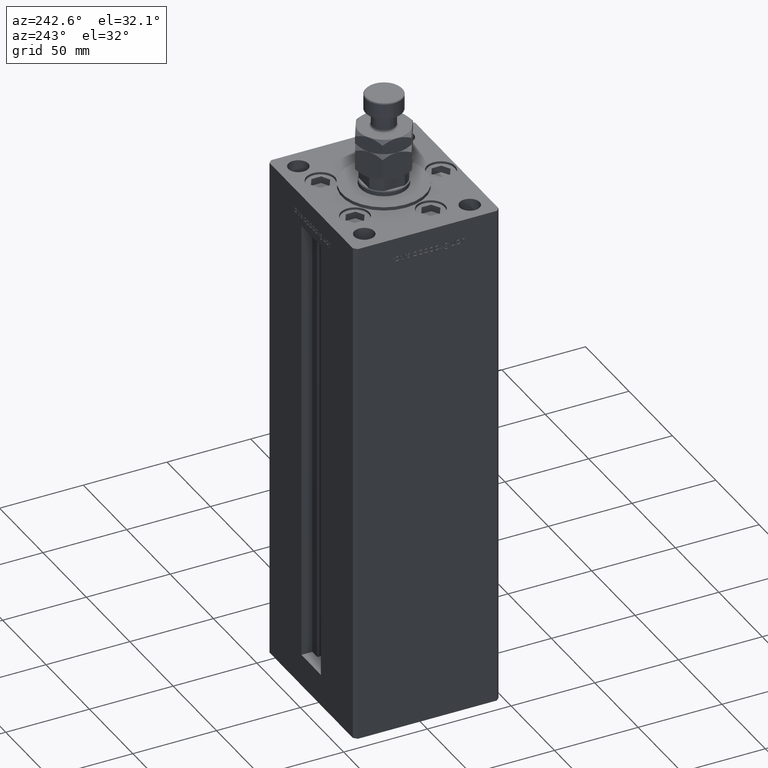
[diagram: clean part render]
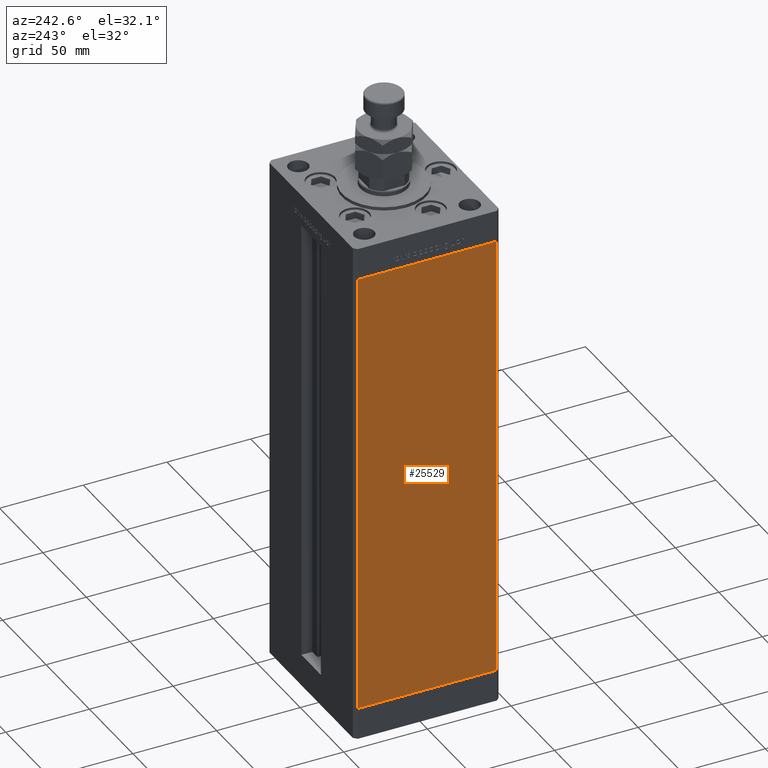
[diagram: same view with one face highlighted and labeled with its STEP entity id]
A machine part, auxiliary view. The second image highlights one B-rep face of the part: STEP entity #25529.
In plain terms, the highlighted planar face has unit normal (1, 0, 0).
Its self-contained STEP definition (entity closure, byte-faithful):
#691 = CARTESIAN_POINT ( 'NONE',  ( -50.00000000000001421, 41.49999999999999289, 268.5000000000000000 ) ) ;
#2582 = DIRECTION ( 'NONE',  ( 1.000000000000000000, 3.344045254895050480E-16, -0.000000000000000000 ) ) ;
#3343 = CARTESIAN_POINT ( 'NONE',  ( -50.00000000000001421, 41.49999999999999289, 0.000000000000000000 ) ) ;
#3827 = VERTEX_POINT ( 'NONE', #33640 ) ;
#5855 = DIRECTION ( 'NONE',  ( -3.344045254895050480E-16, 1.000000000000000000, 0.000000000000000000 ) ) ;
#7083 = VECTOR ( 'NONE', #50530, 1000.000000000000000 ) ;
#8705 = ORIENTED_EDGE ( 'NONE', *, *, #36189, .T. ) ;
#13343 = CARTESIAN_POINT ( 'NONE',  ( -50.00000000000001421, 41.49999999999999289, 268.5000000000000000 ) ) ;
#14565 = PLANE ( 'NONE',  #38735 ) ;
#15817 = CARTESIAN_POINT ( 'NONE',  ( -49.99999999999998579, -41.49999999999999289, 268.5000000000000000 ) ) ;
#19184 = FACE_OUTER_BOUND ( 'NONE', #39685, .T. ) ;
#19618 = ORIENTED_EDGE ( 'NONE', *, *, #40005, .T. ) ;
#19808 = VECTOR ( 'NONE', #49096, 1000.000000000000000 ) ;
#22763 = VERTEX_POINT ( 'NONE', #39065 ) ;
#23524 = CARTESIAN_POINT ( 'NONE',  ( -50.00000000000001421, 41.49999999999999289, 268.5000000000000000 ) ) ;
#25115 = VECTOR ( 'NONE', #46070, 1000.000000000000000 ) ;
#25529 = ADVANCED_FACE ( 'NONE', ( #19184 ), #14565, .F. ) ;
#25916 = VERTEX_POINT ( 'NONE', #39004 ) ;
#30234 = LINE ( 'NONE', #13343, #25115 ) ;
#30858 = ORIENTED_EDGE ( 'NONE', *, *, #46587, .F. ) ;
#33053 = ORIENTED_EDGE ( 'NONE', *, *, #42059, .F. ) ;
#33640 = CARTESIAN_POINT ( 'NONE',  ( -50.00000000000001421, 41.49999999999999289, 0.000000000000000000 ) ) ;
#36189 = EDGE_CURVE ( 'NONE', #3827, #53448, #49886, .T. ) ;
#37578 = DIRECTION ( 'NONE',  ( -0.000000000000000000, -0.000000000000000000, -1.000000000000000000 ) ) ;
#38735 = AXIS2_PLACEMENT_3D ( 'NONE', #23524, #2582, #5855 ) ;
#39004 = CARTESIAN_POINT ( 'NONE',  ( -50.00000000000001421, 41.49999999999999289, 268.5000000000000000 ) ) ;
#39065 = CARTESIAN_POINT ( 'NONE',  ( -49.99999999999998579, -41.49999999999999289, 268.5000000000000000 ) ) ;
#39685 = EDGE_LOOP ( 'NONE', ( #8705, #33053, #30858, #19618 ) ) ;
#40005 = EDGE_CURVE ( 'NONE', #25916, #3827, #30234, .T. ) ;
#42059 = EDGE_CURVE ( 'NONE', #22763, #53448, #49057, .T. ) ;
#45910 = LINE ( 'NONE', #691, #7083 ) ;
#46070 = DIRECTION ( 'NONE',  ( -0.000000000000000000, -0.000000000000000000, -1.000000000000000000 ) ) ;
#46587 = EDGE_CURVE ( 'NONE', #25916, #22763, #45910, .T. ) ;
#47793 = CARTESIAN_POINT ( 'NONE',  ( -49.99999999999998579, -41.49999999999999289, 0.000000000000000000 ) ) ;
#49057 = LINE ( 'NONE', #15817, #53064 ) ;
#49096 = DIRECTION ( 'NONE',  ( 3.344045254895050973E-16, -1.000000000000000000, 0.000000000000000000 ) ) ;
#49886 = LINE ( 'NONE', #3343, #19808 ) ;
#50530 = DIRECTION ( 'NONE',  ( 3.344045254895050973E-16, -1.000000000000000000, 0.000000000000000000 ) ) ;
#53064 = VECTOR ( 'NONE', #37578, 1000.000000000000000 ) ;
#53448 = VERTEX_POINT ( 'NONE', #47793 ) ;